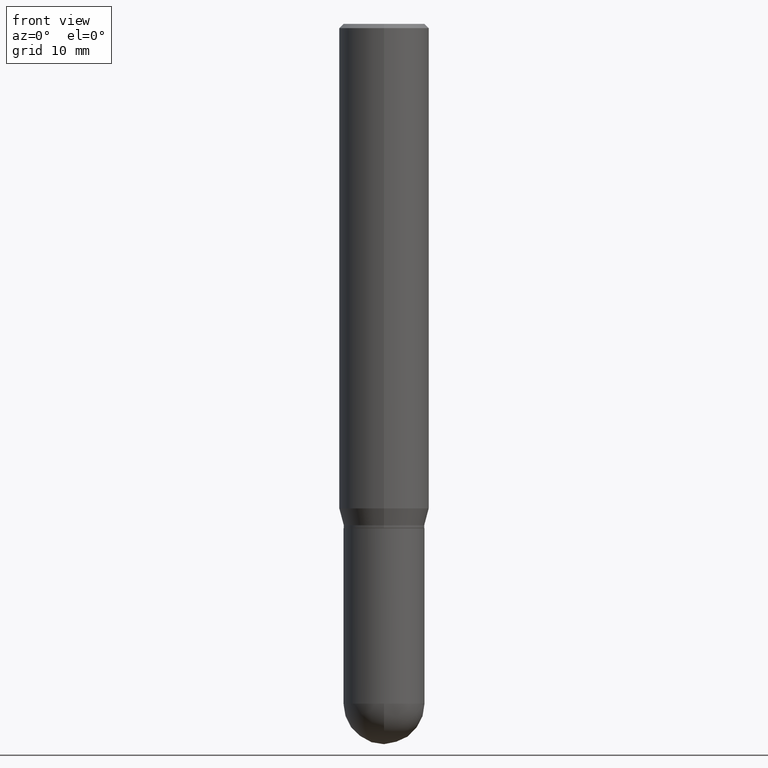
[diagram: clean part render]
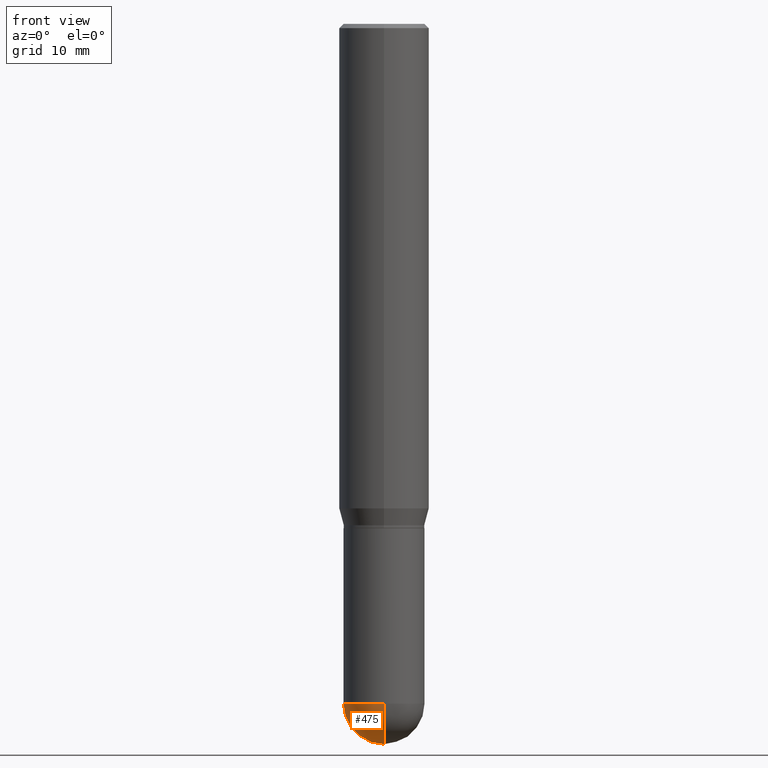
[diagram: same view with one face highlighted and labeled with its STEP entity id]
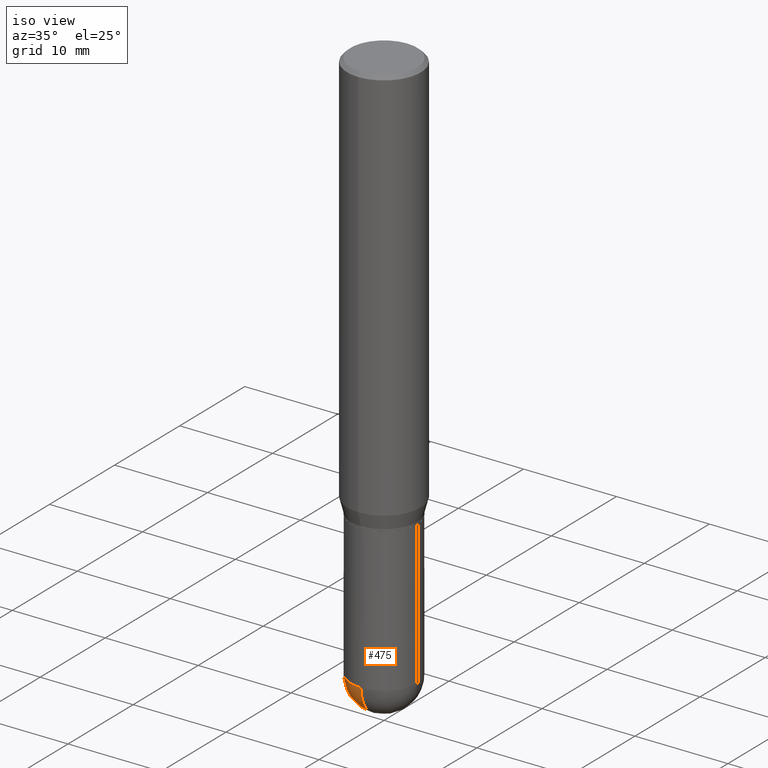
[diagram: same view with one face highlighted and labeled with its STEP entity id]
A machine part, front view. The second image highlights one B-rep face of the part: STEP entity #475.
A second angle (iso view) of the same face is appended — the face is thin or edge-on in the first view.
In plain terms, the highlighted spherical surface has radius 3.5712 mm.
Its self-contained STEP definition (entity closure, byte-faithful):
#36 = EDGE_CURVE ( 'NONE', #42, #281, #412, .T. ) ;
#42 = VERTEX_POINT ( 'NONE', #407 ) ;
#65 = EDGE_LOOP ( 'NONE', ( #415, #111, #441, #257 ) ) ;
#76 = DIRECTION ( 'NONE',  ( -1.000000000000000000, 7.105427357601001070E-15, -4.926315508542082329E-29 ) ) ;
#100 = AXIS2_PLACEMENT_3D ( 'NONE', #405, #473, #362 ) ;
#111 = ORIENTED_EDGE ( 'NONE', *, *, #408, .T. ) ;
#120 = EDGE_CURVE ( 'NONE', #241, #42, #237, .T. ) ;
#158 = AXIS2_PLACEMENT_3D ( 'NONE', #164, #323, #283 ) ;
#164 = CARTESIAN_POINT ( 'NONE',  ( 5.757815463287349061E-29, -8.255019604862529009E-15, -2.359399999999999942 ) ) ;
#195 = DIRECTION ( 'NONE',  ( 1.000000000000000000, -6.982962677686270655E-15, 0.000000000000000000 ) ) ;
#200 = CARTESIAN_POINT ( 'NONE',  ( 5.757815463287349061E-29, -8.255019604862529009E-15, -2.359399999999999942 ) ) ;
#205 = FACE_OUTER_BOUND ( 'NONE', #65, .T. ) ;
#232 = DIRECTION ( 'NONE',  ( -2.445468806185136597E-29, 3.491481338843145583E-15, 1.000000000000000000 ) ) ;
#237 = CIRCLE ( 'NONE', #395, 0.1406000000000000860 ) ;
#240 = SPHERICAL_SURFACE ( 'NONE', #158, 0.1406000000000000860 ) ;
#241 = VERTEX_POINT ( 'NONE', #266 ) ;
#257 = ORIENTED_EDGE ( 'NONE', *, *, #36, .F. ) ;
#266 = CARTESIAN_POINT ( 'NONE',  ( 6.107660196449910766E-29, -8.737312614105869844E-15, -2.500000000000000000 ) ) ;
#272 = CARTESIAN_POINT ( 'NONE',  ( -0.1406000000000000583, -6.174923620442310269E-15, -2.359399999999999942 ) ) ;
#281 = VERTEX_POINT ( 'NONE', #272 ) ;
#283 = DIRECTION ( 'NONE',  ( 6.982962677686265922E-15, 1.000000000000000000, -3.885985766236502230E-15 ) ) ;
#293 = EDGE_CURVE ( 'NONE', #281, #484, #431, .T. ) ;
#299 = CARTESIAN_POINT ( 'NONE',  ( 5.757815463287349061E-29, -8.255019604862529009E-15, -2.359399999999999942 ) ) ;
#312 = CIRCLE ( 'NONE', #375, 0.1406000000000000860 ) ;
#317 = DIRECTION ( 'NONE',  ( -7.105427357601001859E-15, -1.000000000000000000, 0.000000000000000000 ) ) ;
#323 = DIRECTION ( 'NONE',  ( -1.000000000000000000, 6.982962677686265922E-15, -4.883557194083112340E-29 ) ) ;
#348 = CARTESIAN_POINT ( 'NONE',  ( 5.769839101313211634E-29, -8.237801070866517629E-15, -2.359399999999999942 ) ) ;
#362 = DIRECTION ( 'NONE',  ( 1.000000000000000000, -6.982962677686270655E-15, 0.000000000000000000 ) ) ;
#375 = AXIS2_PLACEMENT_3D ( 'NONE', #200, #76, #317 ) ;
#393 = CARTESIAN_POINT ( 'NONE',  ( -9.990230864786434913E-16, -0.1406000000000083017, -2.359399999999999498 ) ) ;
#395 = AXIS2_PLACEMENT_3D ( 'NONE', #299, #402, #444 ) ;
#402 = DIRECTION ( 'NONE',  ( 1.000000000000000000, -6.982962677686265922E-15, 4.883557194083112340E-29 ) ) ;
#405 = CARTESIAN_POINT ( 'NONE',  ( 5.769839101313211634E-29, -8.237801070866517629E-15, -2.359399999999999942 ) ) ;
#407 = CARTESIAN_POINT ( 'NONE',  ( 9.818045524827470871E-16, 0.1405999999999918426, -2.359400000000000386 ) ) ;
#408 = EDGE_CURVE ( 'NONE', #241, #484, #312, .T. ) ;
#412 = CIRCLE ( 'NONE', #100, 0.1406000000000000305 ) ;
#415 = ORIENTED_EDGE ( 'NONE', *, *, #120, .F. ) ;
#431 = CIRCLE ( 'NONE', #503, 0.1406000000000000305 ) ;
#441 = ORIENTED_EDGE ( 'NONE', *, *, #293, .F. ) ;
#444 = DIRECTION ( 'NONE',  ( 6.982962677686266711E-15, 1.000000000000000000, 0.000000000000000000 ) ) ;
#473 = DIRECTION ( 'NONE',  ( -2.445468806185136597E-29, 3.491481338843145583E-15, 1.000000000000000000 ) ) ;
#475 = ADVANCED_FACE ( 'NONE', ( #205 ), #240, .T. ) ;
#484 = VERTEX_POINT ( 'NONE', #393 ) ;
#503 = AXIS2_PLACEMENT_3D ( 'NONE', #348, #232, #195 ) ;